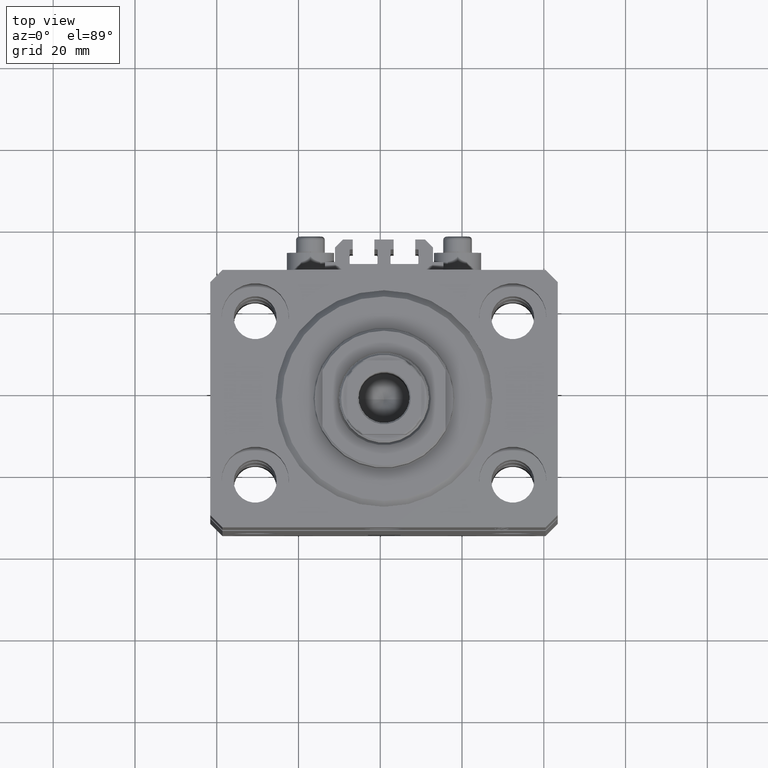
[diagram: clean part render]
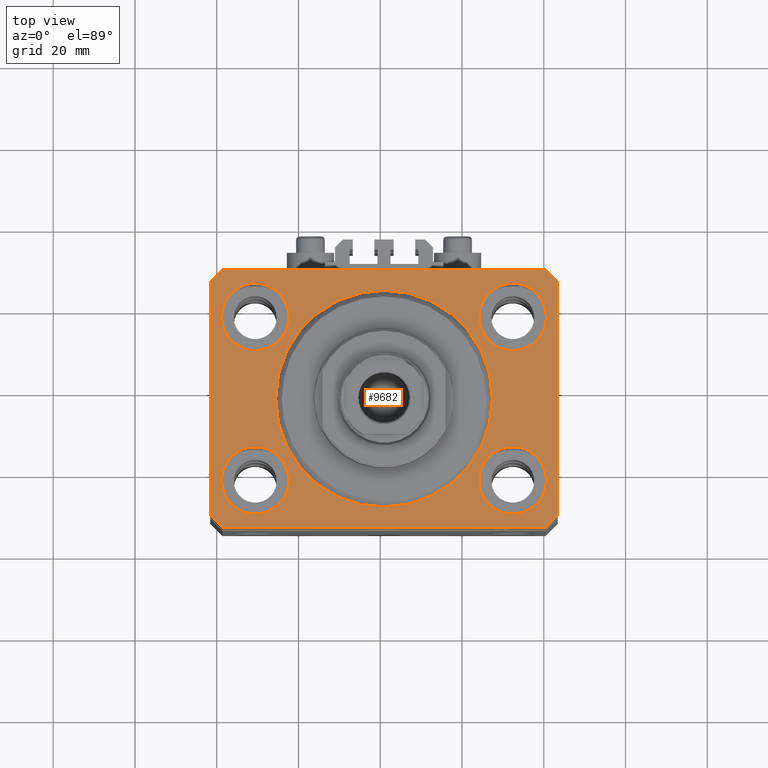
[diagram: same view with one face highlighted and labeled with its STEP entity id]
A machine part, top view. The second image highlights one B-rep face of the part: STEP entity #9682.
In plain terms, the highlighted planar face has unit normal (0, 0, 1).
Its self-contained STEP definition (entity closure, byte-faithful):
#10 = DIRECTION ( 'NONE',  ( 0.000000000000000000, 0.000000000000000000, 1.000000000000000000 ) ) ;
#425 = ORIENTED_EDGE ( 'NONE', *, *, #12304, .T. ) ;
#585 = CARTESIAN_POINT ( 'NONE',  ( -26.50000000000000355, 3.245314017740486554E-15, 0.000000000000000000 ) ) ;
#795 = DIRECTION ( 'NONE',  ( 0.000000000000000000, 0.000000000000000000, 1.000000000000000000 ) ) ;
#900 = VECTOR ( 'NONE', #47524, 1000.000000000000000 ) ;
#956 = VERTEX_POINT ( 'NONE', #4457 ) ;
#1033 = EDGE_CURVE ( 'NONE', #19329, #43553, #32142, .T. ) ;
#1352 = DIRECTION ( 'NONE',  ( 0.000000000000000000, 0.000000000000000000, 1.000000000000000000 ) ) ;
#1682 = CARTESIAN_POINT ( 'NONE',  ( -31.50000000000000000, 20.00000000000000000, 0.000000000000000000 ) ) ;
#1958 = CARTESIAN_POINT ( 'NONE',  ( -42.50000000000000000, 28.50000000000000000, 0.000000000000000000 ) ) ;
#2389 = AXIS2_PLACEMENT_3D ( 'NONE', #25380, #2769, #44326 ) ;
#2414 = DIRECTION ( 'NONE',  ( 0.000000000000000000, 0.000000000000000000, 1.000000000000000000 ) ) ;
#2465 = AXIS2_PLACEMENT_3D ( 'NONE', #16317, #2414, #31110 ) ;
#2769 = DIRECTION ( 'NONE',  ( 0.000000000000000000, 0.000000000000000000, 1.000000000000000000 ) ) ;
#2841 = ORIENTED_EDGE ( 'NONE', *, *, #34324, .F. ) ;
#2963 = FACE_BOUND ( 'NONE', #15351, .T. ) ;
#3626 = CARTESIAN_POINT ( 'NONE',  ( 26.50000000000000355, 0.000000000000000000, 0.000000000000000000 ) ) ;
#3674 = PLANE ( 'NONE',  #15717 ) ;
#3713 = AXIS2_PLACEMENT_3D ( 'NONE', #26338, #795, #19051 ) ;
#3913 = VERTEX_POINT ( 'NONE', #10468 ) ;
#4457 = CARTESIAN_POINT ( 'NONE',  ( 42.50000000000000711, -28.50000000000000355, 0.000000000000000000 ) ) ;
#4759 = VERTEX_POINT ( 'NONE', #24237 ) ;
#4816 = DIRECTION ( 'NONE',  ( 1.000000000000000000, 0.000000000000000000, 0.000000000000000000 ) ) ;
#4850 = ORIENTED_EDGE ( 'NONE', *, *, #8502, .T. ) ;
#5102 = DIRECTION ( 'NONE',  ( 0.000000000000000000, 0.000000000000000000, 1.000000000000000000 ) ) ;
#6194 = EDGE_CURVE ( 'NONE', #30550, #38327, #38936, .T. ) ;
#6711 = CIRCLE ( 'NONE', #40066, 8.249999999999992895 ) ;
#6955 = EDGE_CURVE ( 'NONE', #16630, #24201, #10190, .T. ) ;
#7049 = VERTEX_POINT ( 'NONE', #44089 ) ;
#7055 = VECTOR ( 'NONE', #23887, 1000.000000000000000 ) ;
#7324 = CIRCLE ( 'NONE', #34480, 8.249999999999992895 ) ;
#8502 = EDGE_CURVE ( 'NONE', #48150, #7049, #32670, .T. ) ;
#9103 = EDGE_CURVE ( 'NONE', #4759, #35534, #14159, .T. ) ;
#9477 = CARTESIAN_POINT ( 'NONE',  ( 42.50000000000051870, 28.49999999999995381, 0.000000000000000000 ) ) ;
#9608 = VECTOR ( 'NONE', #34899, 1000.000000000000000 ) ;
#9646 = DIRECTION ( 'NONE',  ( 0.7071067811865471286, -0.7071067811865479058, 0.000000000000000000 ) ) ;
#9682 = ADVANCED_FACE ( 'NONE', ( #14416, #11232, #2963, #29208, #47704, #44042 ), #3674, .T. ) ;
#9847 = ORIENTED_EDGE ( 'NONE', *, *, #36852, .F. ) ;
#10190 = CIRCLE ( 'NONE', #2389, 26.50000000000000355 ) ;
#10468 = CARTESIAN_POINT ( 'NONE',  ( -39.75000000000000000, 20.00000000000000000, 0.000000000000000000 ) ) ;
#11232 = FACE_BOUND ( 'NONE', #27475, .T. ) ;
#12304 = EDGE_CURVE ( 'NONE', #43553, #30550, #16934, .T. ) ;
#12562 = EDGE_LOOP ( 'NONE', ( #15004, #2841 ) ) ;
#12704 = EDGE_CURVE ( 'NONE', #7049, #956, #47658, .T. ) ;
#13085 = AXIS2_PLACEMENT_3D ( 'NONE', #23300, #41278, #4816 ) ;
#13285 = CARTESIAN_POINT ( 'NONE',  ( 31.50000000000000000, 20.00000000000001066, 0.000000000000000000 ) ) ;
#13381 = CARTESIAN_POINT ( 'NONE',  ( 42.50000000000051870, 28.49999999999995381, 0.000000000000000000 ) ) ;
#13850 = CIRCLE ( 'NONE', #13085, 26.50000000000000355 ) ;
#14159 = CIRCLE ( 'NONE', #2465, 8.249999999999992895 ) ;
#14329 = CARTESIAN_POINT ( 'NONE',  ( -31.50000000000000000, -20.00000000000000000, 0.000000000000000000 ) ) ;
#14416 = FACE_BOUND ( 'NONE', #12562, .T. ) ;
#14693 = VERTEX_POINT ( 'NONE', #17528 ) ;
#14930 = ORIENTED_EDGE ( 'NONE', *, *, #18612, .T. ) ;
#14934 = CARTESIAN_POINT ( 'NONE',  ( -39.50000000000000711, -31.50000000000000000, 0.000000000000000000 ) ) ;
#15004 = ORIENTED_EDGE ( 'NONE', *, *, #21875, .F. ) ;
#15351 = EDGE_LOOP ( 'NONE', ( #46694, #32669 ) ) ;
#15712 = CARTESIAN_POINT ( 'NONE',  ( -39.75000000000000000, -20.00000000000000000, 0.000000000000000000 ) ) ;
#15717 = AXIS2_PLACEMENT_3D ( 'NONE', #40861, #10, #18515 ) ;
#16171 = CIRCLE ( 'NONE', #3713, 8.250000000000000000 ) ;
#16273 = ORIENTED_EDGE ( 'NONE', *, *, #1033, .T. ) ;
#16303 = CARTESIAN_POINT ( 'NONE',  ( 31.50000000000000000, -20.00000000000000000, 0.000000000000000000 ) ) ;
#16317 = CARTESIAN_POINT ( 'NONE',  ( 31.50000000000000000, -20.00000000000000000, 0.000000000000000000 ) ) ;
#16630 = VERTEX_POINT ( 'NONE', #3626 ) ;
#16934 = LINE ( 'NONE', #24220, #9608 ) ;
#16942 = CARTESIAN_POINT ( 'NONE',  ( -42.50000000000000000, -28.50000000000000000, 0.000000000000000000 ) ) ;
#17089 = EDGE_LOOP ( 'NONE', ( #19752, #9847 ) ) ;
#17528 = CARTESIAN_POINT ( 'NONE',  ( 23.25000000000000355, 20.00000000000001066, 0.000000000000000000 ) ) ;
#17834 = CARTESIAN_POINT ( 'NONE',  ( 39.50000000000056843, 31.50000000000000000, 0.000000000000000000 ) ) ;
#18162 = ORIENTED_EDGE ( 'NONE', *, *, #36251, .F. ) ;
#18221 = EDGE_CURVE ( 'NONE', #42473, #14693, #7324, .T. ) ;
#18515 = DIRECTION ( 'NONE',  ( 1.000000000000000000, 0.000000000000000000, -0.000000000000000000 ) ) ;
#18612 = EDGE_CURVE ( 'NONE', #956, #20957, #32118, .T. ) ;
#19051 = DIRECTION ( 'NONE',  ( 1.000000000000000000, 0.000000000000000000, 0.000000000000000000 ) ) ;
#19179 = CARTESIAN_POINT ( 'NONE',  ( -39.50000000000000711, -31.50000000000000000, 0.000000000000000000 ) ) ;
#19290 = ORIENTED_EDGE ( 'NONE', *, *, #6194, .T. ) ;
#19329 = VERTEX_POINT ( 'NONE', #17834 ) ;
#19704 = DIRECTION ( 'NONE',  ( 1.000000000000000000, 0.000000000000000000, 0.000000000000000000 ) ) ;
#19752 = ORIENTED_EDGE ( 'NONE', *, *, #6955, .F. ) ;
#19814 = DIRECTION ( 'NONE',  ( 1.000000000000000000, 0.000000000000000000, 0.000000000000000000 ) ) ;
#20681 = AXIS2_PLACEMENT_3D ( 'NONE', #47650, #39860, #44465 ) ;
#20957 = VERTEX_POINT ( 'NONE', #9477 ) ;
#21183 = CARTESIAN_POINT ( 'NONE',  ( 42.50000000000000711, -28.50000000000000355, 0.000000000000000000 ) ) ;
#21875 = EDGE_CURVE ( 'NONE', #29942, #34864, #43956, .T. ) ;
#22423 = EDGE_CURVE ( 'NONE', #14693, #42473, #6711, .T. ) ;
#22970 = CARTESIAN_POINT ( 'NONE',  ( 31.50000000000000000, 20.00000000000001066, 0.000000000000000000 ) ) ;
#23097 = DIRECTION ( 'NONE',  ( 0.000000000000000000, 0.000000000000000000, 1.000000000000000000 ) ) ;
#23111 = CARTESIAN_POINT ( 'NONE',  ( 23.25000000000000355, -20.00000000000000000, 0.000000000000000000 ) ) ;
#23204 = EDGE_CURVE ( 'NONE', #38327, #48150, #31734, .T. ) ;
#23300 = CARTESIAN_POINT ( 'NONE',  ( 0.000000000000000000, 0.000000000000000000, 0.000000000000000000 ) ) ;
#23340 = ORIENTED_EDGE ( 'NONE', *, *, #26779, .T. ) ;
#23887 = DIRECTION ( 'NONE',  ( 0.000000000000000000, -1.000000000000000000, 0.000000000000000000 ) ) ;
#24201 = VERTEX_POINT ( 'NONE', #585 ) ;
#24220 = CARTESIAN_POINT ( 'NONE',  ( -39.50000000000000711, 31.50000000000000000, 0.000000000000000000 ) ) ;
#24237 = CARTESIAN_POINT ( 'NONE',  ( 39.74999999999999289, -20.00000000000000000, 0.000000000000000000 ) ) ;
#24453 = DIRECTION ( 'NONE',  ( 1.000000000000000000, 0.000000000000000000, 0.000000000000000000 ) ) ;
#25016 = DIRECTION ( 'NONE',  ( 0.000000000000000000, 0.000000000000000000, 1.000000000000000000 ) ) ;
#25380 = CARTESIAN_POINT ( 'NONE',  ( 0.000000000000000000, 0.000000000000000000, 0.000000000000000000 ) ) ;
#25950 = EDGE_CURVE ( 'NONE', #3913, #44324, #27547, .T. ) ;
#25996 = DIRECTION ( 'NONE',  ( 0.7071067811865483499, 0.7071067811865466846, 0.000000000000000000 ) ) ;
#26338 = CARTESIAN_POINT ( 'NONE',  ( -31.50000000000000000, 20.00000000000000000, 0.000000000000000000 ) ) ;
#26719 = EDGE_CURVE ( 'NONE', #35534, #4759, #44645, .T. ) ;
#26779 = EDGE_CURVE ( 'NONE', #20957, #19329, #39842, .T. ) ;
#27475 = EDGE_LOOP ( 'NONE', ( #35299, #27530 ) ) ;
#27530 = ORIENTED_EDGE ( 'NONE', *, *, #26719, .F. ) ;
#27547 = CIRCLE ( 'NONE', #40709, 8.250000000000000000 ) ;
#27816 = DIRECTION ( 'NONE',  ( 0.000000000000000000, 0.000000000000000000, 1.000000000000000000 ) ) ;
#28610 = VECTOR ( 'NONE', #38964, 1000.000000000000000 ) ;
#28946 = CARTESIAN_POINT ( 'NONE',  ( -39.50000000000000711, 31.50000000000000000, 0.000000000000000000 ) ) ;
#29208 = FACE_BOUND ( 'NONE', #32604, .T. ) ;
#29870 = CARTESIAN_POINT ( 'NONE',  ( 39.50000000000000711, -31.50000000000000000, 0.000000000000000000 ) ) ;
#29942 = VERTEX_POINT ( 'NONE', #30350 ) ;
#30091 = VECTOR ( 'NONE', #9646, 1000.000000000000000 ) ;
#30350 = CARTESIAN_POINT ( 'NONE',  ( -23.25000000000000000, -20.00000000000000000, 0.000000000000000000 ) ) ;
#30550 = VERTEX_POINT ( 'NONE', #1958 ) ;
#31110 = DIRECTION ( 'NONE',  ( 1.000000000000000000, 0.000000000000000000, 0.000000000000000000 ) ) ;
#31734 = LINE ( 'NONE', #16942, #30091 ) ;
#32118 = LINE ( 'NONE', #21183, #34516 ) ;
#32142 = LINE ( 'NONE', #43329, #28610 ) ;
#32604 = EDGE_LOOP ( 'NONE', ( #18162, #44800 ) ) ;
#32669 = ORIENTED_EDGE ( 'NONE', *, *, #22423, .F. ) ;
#32670 = LINE ( 'NONE', #14934, #900 ) ;
#34324 = EDGE_CURVE ( 'NONE', #34864, #29942, #35472, .T. ) ;
#34480 = AXIS2_PLACEMENT_3D ( 'NONE', #22970, #27816, #19814 ) ;
#34516 = VECTOR ( 'NONE', #46967, 1000.000000000000000 ) ;
#34742 = DIRECTION ( 'NONE',  ( 1.000000000000000000, 0.000000000000000000, 0.000000000000000000 ) ) ;
#34864 = VERTEX_POINT ( 'NONE', #15712 ) ;
#34899 = DIRECTION ( 'NONE',  ( -0.7071067811865471286, -0.7071067811865479058, 0.000000000000000000 ) ) ;
#35299 = ORIENTED_EDGE ( 'NONE', *, *, #9103, .F. ) ;
#35472 = CIRCLE ( 'NONE', #37022, 8.250000000000000000 ) ;
#35534 = VERTEX_POINT ( 'NONE', #23111 ) ;
#35939 = DIRECTION ( 'NONE',  ( 1.000000000000000000, 0.000000000000000000, 0.000000000000000000 ) ) ;
#36251 = EDGE_CURVE ( 'NONE', #44324, #3913, #16171, .T. ) ;
#36658 = ORIENTED_EDGE ( 'NONE', *, *, #23204, .T. ) ;
#36852 = EDGE_CURVE ( 'NONE', #24201, #16630, #13850, .T. ) ;
#37022 = AXIS2_PLACEMENT_3D ( 'NONE', #14329, #25016, #35939 ) ;
#37082 = EDGE_LOOP ( 'NONE', ( #16273, #425, #19290, #36658, #4850, #39174, #14930, #23340 ) ) ;
#38327 = VERTEX_POINT ( 'NONE', #45344 ) ;
#38422 = AXIS2_PLACEMENT_3D ( 'NONE', #16303, #5102, #19704 ) ;
#38936 = LINE ( 'NONE', #39176, #7055 ) ;
#38964 = DIRECTION ( 'NONE',  ( -1.000000000000000000, 0.000000000000000000, 0.000000000000000000 ) ) ;
#39174 = ORIENTED_EDGE ( 'NONE', *, *, #12704, .T. ) ;
#39176 = CARTESIAN_POINT ( 'NONE',  ( -42.50000000000000000, 28.50000000000000000, 0.000000000000000000 ) ) ;
#39357 = DIRECTION ( 'NONE',  ( -0.7071067811865356934, 0.7071067811865594521, 0.000000000000000000 ) ) ;
#39842 = LINE ( 'NONE', #13381, #46993 ) ;
#39860 = DIRECTION ( 'NONE',  ( 0.000000000000000000, 0.000000000000000000, 1.000000000000000000 ) ) ;
#40066 = AXIS2_PLACEMENT_3D ( 'NONE', #13285, #1352, #24453 ) ;
#40709 = AXIS2_PLACEMENT_3D ( 'NONE', #1682, #23097, #34742 ) ;
#40861 = CARTESIAN_POINT ( 'NONE',  ( 0.000000000000000000, 0.000000000000000000, 0.000000000000000000 ) ) ;
#41278 = DIRECTION ( 'NONE',  ( 0.000000000000000000, 0.000000000000000000, 1.000000000000000000 ) ) ;
#42473 = VERTEX_POINT ( 'NONE', #42814 ) ;
#42814 = CARTESIAN_POINT ( 'NONE',  ( 39.74999999999999289, 20.00000000000001066, 0.000000000000000000 ) ) ;
#43329 = CARTESIAN_POINT ( 'NONE',  ( 39.50000000000056843, 31.50000000000000000, 0.000000000000000000 ) ) ;
#43553 = VERTEX_POINT ( 'NONE', #28946 ) ;
#43956 = CIRCLE ( 'NONE', #20681, 8.250000000000000000 ) ;
#44042 = FACE_OUTER_BOUND ( 'NONE', #37082, .T. ) ;
#44089 = CARTESIAN_POINT ( 'NONE',  ( 39.50000000000000711, -31.50000000000000000, 0.000000000000000000 ) ) ;
#44324 = VERTEX_POINT ( 'NONE', #44538 ) ;
#44326 = DIRECTION ( 'NONE',  ( 1.000000000000000000, 0.000000000000000000, 0.000000000000000000 ) ) ;
#44465 = DIRECTION ( 'NONE',  ( 1.000000000000000000, 0.000000000000000000, 0.000000000000000000 ) ) ;
#44538 = CARTESIAN_POINT ( 'NONE',  ( -23.25000000000000000, 20.00000000000000000, 0.000000000000000000 ) ) ;
#44645 = CIRCLE ( 'NONE', #38422, 8.249999999999992895 ) ;
#44800 = ORIENTED_EDGE ( 'NONE', *, *, #25950, .F. ) ;
#45300 = VECTOR ( 'NONE', #25996, 1000.000000000000000 ) ;
#45344 = CARTESIAN_POINT ( 'NONE',  ( -42.50000000000000000, -28.50000000000000000, 0.000000000000000000 ) ) ;
#46694 = ORIENTED_EDGE ( 'NONE', *, *, #18221, .F. ) ;
#46967 = DIRECTION ( 'NONE',  ( 8.886653596232072440E-15, 1.000000000000000000, 0.000000000000000000 ) ) ;
#46993 = VECTOR ( 'NONE', #39357, 1000.000000000000114 ) ;
#47524 = DIRECTION ( 'NONE',  ( 1.000000000000000000, 0.000000000000000000, 0.000000000000000000 ) ) ;
#47650 = CARTESIAN_POINT ( 'NONE',  ( -31.50000000000000000, -20.00000000000000000, 0.000000000000000000 ) ) ;
#47658 = LINE ( 'NONE', #29870, #45300 ) ;
#47704 = FACE_BOUND ( 'NONE', #17089, .T. ) ;
#48150 = VERTEX_POINT ( 'NONE', #19179 ) ;